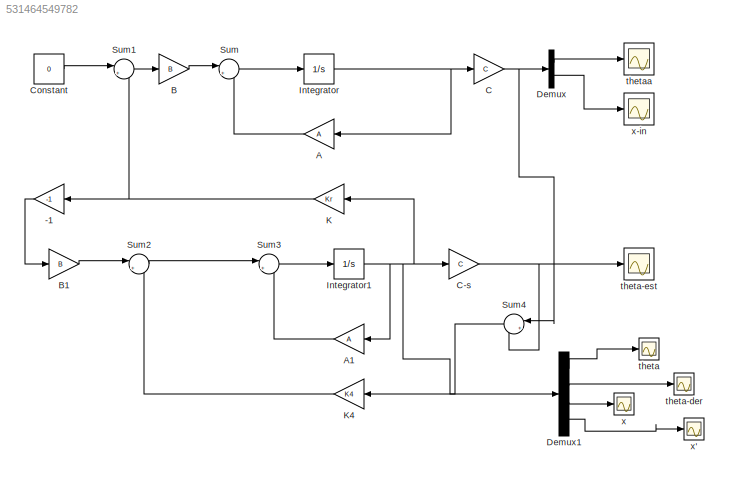
MODEL slx_531464549782
KIND model
CONFIG AbsTol = auto
CONFIG FixedStep = auto
CONFIG MaxStep = auto
CONFIG MinStep = auto
CONFIG RelTol = 1e-3
CONFIG SampleTimeConstraint = Unconstrained
CONFIG Solver = VariableStepAuto
CONFIG SolverMode = Auto
CONFIG SolverName = VariableStepAuto
CONFIG StartTime = 0.0
CONFIG StopTime = 2
BLOCK [Gain] -1
  Gain = -1
  OutDataTypeStr = Inherit: Inherit via internal rule
  ParamDataTypeStr = Inherit: Inherit via internal rule
  SaturateOnIntegerOverflow = off
BLOCK [Gain] A
  Gain = A
  Multiplication = Matrix(K*u)
  OutDataTypeStr = Inherit: Inherit via internal rule
  ParamDataTypeStr = Inherit: Inherit via internal rule
  SaturateOnIntegerOverflow = off
BLOCK [Gain] A1
  Gain = A
  Multiplication = Matrix(K*u)
  OutDataTypeStr = Inherit: Inherit via internal rule
  ParamDataTypeStr = Inherit: Inherit via internal rule
  SaturateOnIntegerOverflow = off
BLOCK [Gain] B
  Gain = B
  OutDataTypeStr = Inherit: Inherit via internal rule
  ParamDataTypeStr = Inherit: Inherit via internal rule
  SaturateOnIntegerOverflow = off
BLOCK [Gain] B1
  Gain = B
  OutDataTypeStr = Inherit: Inherit via internal rule
  ParamDataTypeStr = Inherit: Inherit via internal rule
  SaturateOnIntegerOverflow = off
BLOCK [Gain] C
  Gain = C
  Multiplication = Matrix(K*u) (u vector)
  OutDataTypeStr = Inherit: Inherit via internal rule
  ParamDataTypeStr = Inherit: Inherit via internal rule
  SaturateOnIntegerOverflow = off
BLOCK [Gain] C-s
  Gain = C
  Multiplication = Matrix(K*u) (u vector)
  OutDataTypeStr = Inherit: Inherit via internal rule
  ParamDataTypeStr = Inherit: Inherit via internal rule
  SaturateOnIntegerOverflow = off
BLOCK [Constant] Constant
  Value = 0
BLOCK [Demux] Demux
  DisplayOption = bar
  Outputs = 2
  Ports = [1, 2]
BLOCK [Demux] Demux1
  DisplayOption = bar
  Ports = [1, 4]
BLOCK [Integrator] Integrator
  InitialCondition = initial
  Ports = [1, 1]
BLOCK [Integrator] Integrator1
  InitialCondition = initial
  Ports = [1, 1]
BLOCK [Gain] K
  Gain = Kr
  Multiplication = Matrix(K*u)
  OutDataTypeStr = Inherit: Inherit via internal rule
  ParamDataTypeStr = Inherit: Inherit via internal rule
  SaturateOnIntegerOverflow = off
BLOCK [Gain] K4
  Gain = K4
  Multiplication = Matrix(K*u)
  OutDataTypeStr = Inherit: Inherit via internal rule
  ParamDataTypeStr = Inherit: Inherit via internal rule
  SaturateOnIntegerOverflow = off
BLOCK [Sum] Sum
  IconShape = round
  InputSameDT = off
  Inputs = |++
  OutDataTypeStr = Inherit: Inherit via internal rule
  Ports = [2, 1]
  SaturateOnIntegerOverflow = off
BLOCK [Sum] Sum1
  IconShape = round
  InputSameDT = off
  Inputs = |+-
  OutDataTypeStr = Inherit: Inherit via internal rule
  Ports = [2, 1]
  SaturateOnIntegerOverflow = off
BLOCK [Sum] Sum2
  IconShape = round
  InputSameDT = off
  Inputs = |++
  OutDataTypeStr = Inherit: Inherit via internal rule
  Ports = [2, 1]
  SaturateOnIntegerOverflow = off
BLOCK [Sum] Sum3
  IconShape = round
  InputSameDT = off
  Inputs = |++
  OutDataTypeStr = Inherit: Inherit via internal rule
  Ports = [2, 1]
  SaturateOnIntegerOverflow = off
BLOCK [Sum] Sum4
  IconShape = round
  InputSameDT = off
  Inputs = |+-
  OutDataTypeStr = Inherit: Inherit via internal rule
  Ports = [2, 1]
  SaturateOnIntegerOverflow = off
BLOCK [Scope] theta
  Ports = [1]
  ScopeSpecificationString = Simulink.scopes.TimeScopeBlockCfg('CurrentConfiguration', extmgr.ConfigurationSet(extmgr.Configuration('Core','General UI',true),extmgr.Configuration('Core','Source UI',true),extmgr.Configuration('Sources','WiredSimulink',true,'DataLoggingVariableName','ScopeData6','DataLoggingLimitDataPoints',true,'DataLoggingSaveFormat','Array','DataLoggingDecimation','1','DataLoggingDecimateData',true),extmgr.C...<+1673ch>
BLOCK [Scope] theta-der
  Ports = [1]
  ScopeSpecificationString = Simulink.scopes.TimeScopeBlockCfg('CurrentConfiguration', extmgr.ConfigurationSet(extmgr.Configuration('Core','General UI',true),extmgr.Configuration('Core','Source UI',true),extmgr.Configuration('Sources','WiredSimulink',true,'DataLoggingVariableName','ScopeData3','DataLoggingLimitDataPoints',true,'DataLoggingSaveFormat','Array','DataLoggingDecimation','1','DataLoggingDecimateData',true),extmgr.C...<+1675ch>
BLOCK [Scope] theta-est
  Ports = [1]
  ScopeSpecificationString = C++SS(StrPVP('Location','[1, 49, 1367, 737]'),StrPVP('Open','off'),StrPVP('ZoomMode','xonly'),MxPVP('AxesTitles',24,'struct(''axes1'',''%<SignalLabel>'')'),MxPVP('ScopeGraphics',28,'struct(''FigureColor'',''[0.5 0.5 0.5]'',''AxesColor'',''[0 0 0]'',''AxesTickColor'',''[1 1 1]'',''LineColors'',''[1 1 0;1 0 1;0 1 1;1 0 0;0 1 0;0 0 1]'',''LineStyles'',''-|-|-|-|-|-'',''LineWidths'',''[0.5 0.5 0.5 0.5...<+253ch>
BLOCK [Scope] thetaa
  Ports = [1]
  ScopeSpecificationString = C++SS(StrPVP('Location','[1, 49, 1367, 737]'),StrPVP('Open','off'),StrPVP('ZoomMode','xonly'),MxPVP('AxesTitles',24,'struct(''axes1'',''%<SignalLabel>'')'),MxPVP('ScopeGraphics',28,'struct(''FigureColor'',''[0.5 0.5 0.5]'',''AxesColor'',''[0 0 0]'',''AxesTickColor'',''[1 1 1]'',''LineColors'',''[1 1 0;1 0 1;0 1 1;1 0 0;0 1 0;0 0 1]'',''LineStyles'',''-|-|-|-|-|-'',''LineWidths'',''[0.5 0.5 0.5 0.5...<+220ch>
BLOCK [Scope] x
  Ports = [1]
  ScopeSpecificationString = C++SS(StrPVP('Location','[409, 236, 934, 518]'),StrPVP('Open','off'),MxPVP('AxesTitles',24,'struct(''axes1'',''%<SignalLabel>'')'),MxPVP('ScopeGraphics',28,'struct(''FigureColor'',''[0.5 0.5 0.5]'',''AxesColor'',''[0 0 0]'',''AxesTickColor'',''[1 1 1]'',''LineColors'',''[1 1 0;1 0 1;0 1 1;1 0 0;0 1 0;0 0 1]'',''LineStyles'',''-|-|-|-|-|-'',''LineWidths'',''[0.5 0.5 0.5 0.5 0.5 0.5]'',''MarkerStyle...<+228ch>
BLOCK [Scope] x' 
  Ports = [1]
  ScopeSpecificationString = C++SS(StrPVP('Location','[289, 225, 789, 493]'),StrPVP('Open','off'),MxPVP('AxesTitles',24,'struct(''axes1'',''%<SignalLabel>'')'),MxPVP('ScopeGraphics',28,'struct(''FigureColor'',''[0.5 0.5 0.5]'',''AxesColor'',''[0 0 0]'',''AxesTickColor'',''[1 1 1]'',''LineColors'',''[1 1 0;1 0 1;0 1 1;1 0 0;0 1 0;0 0 1]'',''LineStyles'',''-|-|-|-|-|-'',''LineWidths'',''[0.5 0.5 0.5 0.5 0.5 0.5]'',''MarkerStyle...<+228ch>
BLOCK [Scope] x-in
  Ports = [1]
  ScopeSpecificationString = C++SS(StrPVP('Location','[1, 49, 1367, 737]'),StrPVP('Open','off'),StrPVP('ZoomMode','xonly'),MxPVP('AxesTitles',24,'struct(''axes1'',''%<SignalLabel>'')'),MxPVP('ScopeGraphics',28,'struct(''FigureColor'',''[0.5 0.5 0.5]'',''AxesColor'',''[0 0 0]'',''AxesTickColor'',''[1 1 1]'',''LineColors'',''[1 1 0;1 0 1;0 1 1;1 0 0;0 1 0;0 0 1]'',''LineStyles'',''-|-|-|-|-|-'',''LineWidths'',''[0.5 0.5 0.5 0.5...<+253ch>
LINE -1:1 -> B1:1
LINE A1:1 -> Sum3:2
LINE A:1 -> Sum:2
LINE B1:1 -> Sum2:1
LINE B:1 -> Sum:1
NET C-s:1 -> Sum4:2, theta-est:1
NET C:1 -> Demux:1, Sum4:1
LINE Constant:1 -> Sum1:1
LINE Demux1:1 -> theta:1
LINE Demux1:2 -> theta-der:1
LINE Demux1:3 -> x:1
LINE Demux1:4 -> x' :1
LINE Demux:1 -> thetaa:1
LINE Demux:2 -> x-in:1
NET Integrator1:1 -> A1:1, C-s:1, Demux1:1, K:1
NET Integrator:1 -> A:1, C:1
LINE K4:1 -> Sum2:2
NET K:1 -> -1:1, Sum1:2
LINE Sum1:1 -> B:1
LINE Sum2:1 -> Sum3:1
LINE Sum3:1 -> Integrator1:1
LINE Sum4:1 -> K4:1
LINE Sum:1 -> Integrator:1
note: NET lines group one-source signal fan-out (src -> all destinations, sorted); 1:1 wires keep LINE
